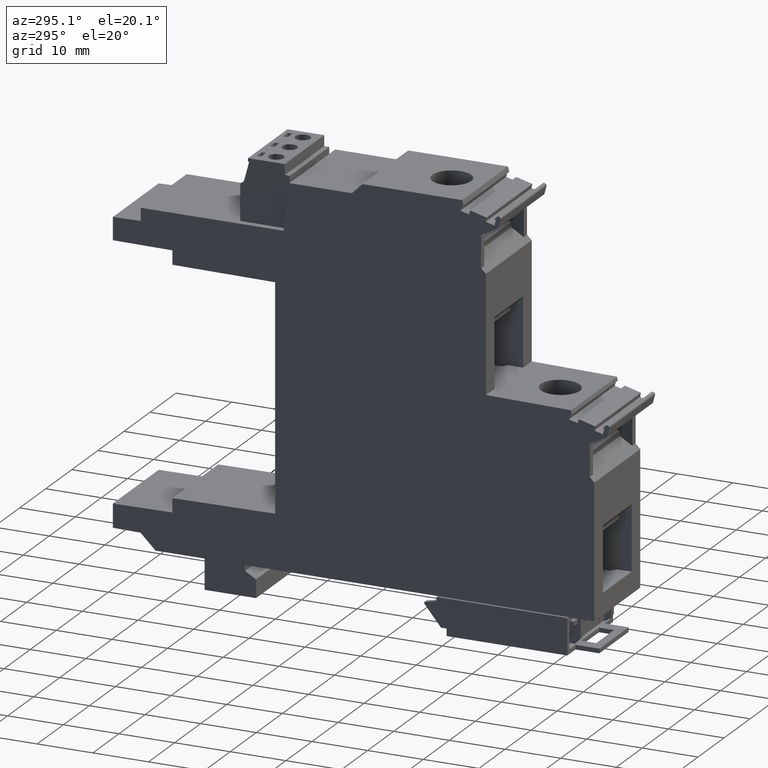
[diagram: clean part render]
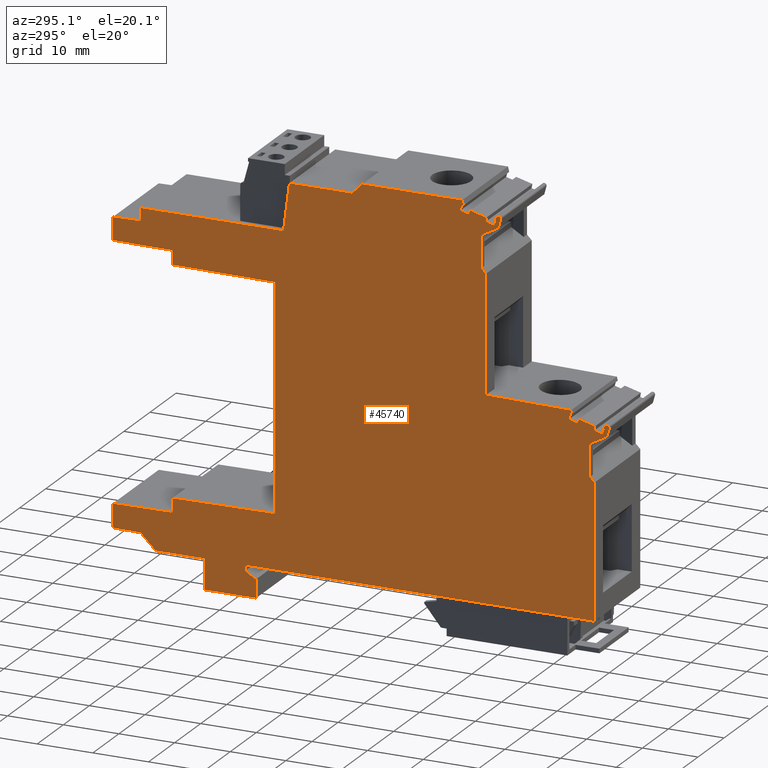
[diagram: same view with one face highlighted and labeled with its STEP entity id]
A machine part, auxiliary view. The second image highlights one B-rep face of the part: STEP entity #45740.
In plain terms, the highlighted planar face has unit normal (-1, 0, 0).
Its self-contained STEP definition (entity closure, byte-faithful):
#26860=CARTESIAN_POINT('',(29.7804584000225,54.1326792958271,
1.6642805651331E-11));
#26870=VERTEX_POINT('',#26860);
#26900=CARTESIAN_POINT('',(29.7804584000229,22.923372749623,
2.92988411198072E-11));
#26910=DIRECTION('',(1.25004173678888E-14,-1.,1.13296184049846E-12));
#26920=VECTOR('',#26910,1.);
#26930=LINE('',#26900,#26920);
#26940=CARTESIAN_POINT('',(29.7804584000233,-8.66541060671706,
1.6642805651331E-11));
#26950=VERTEX_POINT('',#26940);
#26960=EDGE_CURVE('',#26870,#26950,#26930,.T.);
#27560=CARTESIAN_POINT('',(27.0903182029156,72.8882266625509,
1.66430725755755E-11));
#27570=VERTEX_POINT('',#27560);
#27600=CARTESIAN_POINT('',(76.2441454417272,23.7343994237406,
1.66457073106839E-11));
#27610=DIRECTION('',(0.707106781186557,-0.707106781186538,
4.17487700344444E-17));
#27620=VECTOR('',#27610,1.);
#27630=LINE('',#27600,#27620);
#27640=CARTESIAN_POINT('',(29.7804584000223,70.1980864654443,
1.6642805651331E-11));
#27650=VERTEX_POINT('',#27640);
#27660=EDGE_CURVE('',#27570,#27650,#27630,.T.);
#27890=CARTESIAN_POINT('',(27.9630117104619,22.8916490996531,
1.66426921517032E-11));
#27900=DIRECTION('',(0.0174524064372285,-0.999847695156392,
1.08990356972334E-18));
#27910=VECTOR('',#27900,1.);
#27920=LINE('',#27890,#27910);
#27930=CARTESIAN_POINT('',(27.0034554679887,77.8645894136735,
1.66426322273726E-11));
#27940=VERTEX_POINT('',#27930);
#27950=EDGE_CURVE('',#27940,#27570,#27920,.T.);
#28400=CARTESIAN_POINT('',(22.8006257261738,77.8645894136737,
1.66423697604655E-11));
#28410=VERTEX_POINT('',#28400);
#28440=CARTESIAN_POINT('',(-0.00376247512557537,77.864589413675,
1.66410367156577E-11));
#28450=DIRECTION('',(1.,-5.50288981049363E-14,6.24500451351651E-17));
#28460=VECTOR('',#28450,1.);
#28470=LINE('',#28440,#28460);
#28480=EDGE_CURVE('',#28410,#27940,#28470,.T.);
#33450=CARTESIAN_POINT('',(-6.12590482805948,-4.46147353397843,
1.66406830105668E-11));
#33460=VERTEX_POINT('',#33450);
#33490=CARTESIAN_POINT('',(-7.79388468213482,91.0970283068423,
-3.04049163826878E-11));
#33500=DIRECTION('',(-0.0174524064372899,0.999847695156391,
-1.02934146988015E-18));
#33510=VECTOR('',#33500,1.);
#33520=LINE('',#33490,#33510);
#33530=CARTESIAN_POINT('',(-6.39301882384896,10.8414770358341,
1.66405466160457E-11));
#33540=VERTEX_POINT('',#33530);
#33550=EDGE_CURVE('',#33460,#33540,#33520,.T.);
#40580=CARTESIAN_POINT('',(-28.6243628162101,25.7204398027176,
-3.04061410291903E-11));
#40590=DIRECTION('',(0.70710678118658,-0.707106781186515,
4.17050987279859E-17));
#40600=VECTOR('',#40590,1.);
#40610=LINE('',#40580,#40600);
#40620=CARTESIAN_POINT('',(4.91148759322796,-7.81541060671746,
1.66417170093229E-11));
#40630=VERTEX_POINT('',#40620);
#40640=CARTESIAN_POINT('',(5.76148759322794,-8.66541060671736,
1.66418504671819E-11));
#40650=VERTEX_POINT('',#40640);
#40660=EDGE_CURVE('',#40630,#40650,#40610,.T.);
#41390=CARTESIAN_POINT('',(26.2962375289642,75.5145893805072,
1.66425880615804E-11));
#41400=DIRECTION('',(6.24500451351651E-17,-9.63831640668592E-31,-1.));
#41410=DIRECTION('',(-1.,-1.25004173678889E-14,-6.24500451351651E-17));
#41420=AXIS2_PLACEMENT_3D('',#41390,#41400,#41410);
#41430=PLANE('',#41420);
#41440=CARTESIAN_POINT('',(-39.5037624751259,91.0970283068417,
-3.04067866670042E-11));
#41450=DIRECTION('',(1.24969479209369E-14,-1.,6.05501983199407E-20));
#41460=VECTOR('',#41450,1.);
#41470=LINE('',#41440,#41460);
#41480=CARTESIAN_POINT('',(-39.5037624751252,33.0330606274227,
1.66384788486102E-11));
#41490=VERTEX_POINT('',#41480);
#41500=CARTESIAN_POINT('',(-39.503762475125,15.1035574072957,
1.66392508363457E-11));
#41510=VERTEX_POINT('',#41500);
#41520=EDGE_CURVE('',#41490,#41510,#41470,.T.);
#41530=ORIENTED_EDGE('',*,*,#41520,.F.);
#41540=CARTESIAN_POINT('',(-28.6243628162099,12.3910168092608,
-3.04061401136708E-11));
#41550=DIRECTION('',(0.970295692592301,-0.241922030697551,
5.72279586783136E-17));
#41560=VECTOR('',#41550,1.);
#41570=LINE('',#41540,#41560);
#41580=CARTESIAN_POINT('',(-38.603017024317,14.8789762097653,
1.66392894854534E-11));
#41590=VERTEX_POINT('',#41580);
#41600=EDGE_CURVE('',#41510,#41590,#41570,.T.);
#41610=ORIENTED_EDGE('',*,*,#41600,.F.);
#41620=CARTESIAN_POINT('',(-60.4580751243689,91.0970283068413,
-3.04080225759714E-11));
#41630=DIRECTION('',(-0.275635996398349,0.961262085744304,
-1.62569879806416E-17));
#41640=VECTOR('',#41630,1.);
#41650=LINE('',#41620,#41640);
#41660=CARTESIAN_POINT('',(-38.6808381639461,15.1503722246993,
1.66387228968582E-11));
#41670=VERTEX_POINT('',#41660);
#41680=EDGE_CURVE('',#41590,#41670,#41650,.T.);
#41690=ORIENTED_EDGE('',*,*,#41680,.F.);
#41700=CARTESIAN_POINT('',(-28.62436281621,17.8449966728289,
-3.04061405523306E-11));
#41710=DIRECTION('',(0.965925826289065,0.258819045102533,
5.69702243297629E-17));
#41720=VECTOR('',#41710,1.);
#41730=LINE('',#41700,#41720);
#41740=CARTESIAN_POINT('',(-37.6387835299282,15.4295899223536,
1.66387827830843E-11));
#41750=VERTEX_POINT('',#41740);
#41760=EDGE_CURVE('',#41670,#41750,#41730,.T.);
#41770=ORIENTED_EDGE('',*,*,#41760,.F.);
#41780=CARTESIAN_POINT('',(-57.9138105754083,91.0970283068414,
-3.04078725123819E-11));
#41790=DIRECTION('',(0.258819021722919,-0.965925832553614,
1.5265124222854E-17));
#41800=VECTOR('',#41790,1.);
#41810=LINE('',#41780,#41800);
#41820=CARTESIAN_POINT('',(-37.2254797137874,13.8871189322158,
1.66387468122473E-11));
#41830=VERTEX_POINT('',#41820);
#41840=EDGE_CURVE('',#41750,#41830,#41810,.T.);
#41850=ORIENTED_EDGE('',*,*,#41840,.F.);
#41860=CARTESIAN_POINT('',(-28.62436281621,17.0176701124642,
-3.04061403938156E-11));
#41870=DIRECTION('',(-0.939692598029631,-0.342020205848021,
-5.54229907242845E-17));
#41880=VECTOR('',#41870,1.);
#41890=LINE('',#41860,#41880);
#41900=CARTESIAN_POINT('',(-37.9329412321889,13.6296239443224,
1.66384133739823E-11));
#41910=VERTEX_POINT('',#41900);
#41920=EDGE_CURVE('',#41830,#41910,#41890,.T.);
#41930=ORIENTED_EDGE('',*,*,#41920,.F.);
#41940=CARTESIAN_POINT('',(-58.690269670862,91.0970283068414,
-3.04079183088141E-11));
#41950=DIRECTION('',(0.258819045102531,-0.965925826289066,
1.52651256017816E-17));
#41960=VECTOR('',#41950,1.);
#41970=LINE('',#41940,#41960);
#41980=CARTESIAN_POINT('',(-37.1564841019529,10.7318464843829,
1.66384966407086E-11));
#41990=VERTEX_POINT('',#41980);
#42000=EDGE_CURVE('',#41910,#41990,#41970,.T.);
#42010=ORIENTED_EDGE('',*,*,#42000,.F.);
#42020=CARTESIAN_POINT('',(-28.6243628162099,12.236289678457,
-3.04061402127223E-11));
#42030=DIRECTION('',(0.984807752840075,0.173648178643145,
5.80838787762145E-17));
#42040=VECTOR('',#42030,1.);
#42050=LINE('',#42020,#42040);
#42060=CARTESIAN_POINT('',(-36.4150569430204,10.8625800974905,
1.66385413739017E-11));
#42070=VERTEX_POINT('',#42060);
#42080=EDGE_CURVE('',#41990,#42070,#42050,.T.);
#42090=ORIENTED_EDGE('',*,*,#42080,.F.);
#42100=CARTESIAN_POINT('',(-57.9138125458732,91.0970283068414,
-3.04078725124981E-11));
#42110=DIRECTION('',(0.258819045102527,-0.965925826289067,
1.52651256017813E-17));
#42120=VECTOR('',#42110,1.);
#42130=LINE('',#42100,#42120);
#42140=CARTESIAN_POINT('',(-36.0017530800778,9.3201090820241,
1.66388768621965E-11));
#42150=VERTEX_POINT('',#42140);
#42160=EDGE_CURVE('',#42070,#42150,#42130,.T.);
#42170=ORIENTED_EDGE('',*,*,#42160,.F.);
#42180=CARTESIAN_POINT('',(-28.6243628162099,11.2968748552859,
-3.04061401558405E-11));
#42190=DIRECTION('',(-0.96592582596799,-0.258819046300801,
-5.69702243108259E-17));
#42200=VECTOR('',#42190,1.);
#42210=LINE('',#42180,#42200);
#42220=CARTESIAN_POINT('',(-37.0352937140416,9.04317270243452,
1.66385244752452E-11));
#42230=VERTEX_POINT('',#42220);
#42240=EDGE_CURVE('',#42150,#42230,#42210,.T.);
#42250=ORIENTED_EDGE('',*,*,#42240,.F.);
#42260=CARTESIAN_POINT('',(-59.0215580591035,91.0970283068414,
-3.04079378485765E-11));
#42270=DIRECTION('',(-0.258819045102533,0.965925826289065,
-1.52651256017817E-17));
#42280=VECTOR('',#42270,1.);
#42290=LINE('',#42260,#42280);
#42300=CARTESIAN_POINT('',(-37.1057721130053,9.30620166820297,
1.66385169171904E-11));
#42310=VERTEX_POINT('',#42300);
#42320=EDGE_CURVE('',#42230,#42310,#42290,.T.);
#42330=ORIENTED_EDGE('',*,*,#42320,.F.);
#42340=CARTESIAN_POINT('',(44.6850536738362,91.0970283068433,
-3.04018211157809E-11));
#42350=DIRECTION('',(-0.707106777504517,-0.707106784868579,
-4.17050985108168E-17));
#42360=VECTOR('',#42350,1.);
#42370=LINE('',#42340,#42360);
#42380=CARTESIAN_POINT('',(-37.5548211049481,8.85715267158364,
1.6638601535548E-11));
#42390=VERTEX_POINT('',#42380);
#42400=EDGE_CURVE('',#42310,#42390,#42370,.T.);
#42410=ORIENTED_EDGE('',*,*,#42400,.F.);
#42420=CARTESIAN_POINT('',(-37.271978391,8.57430996058117,
-3.04066500370977E-11));
#42430=DIRECTION('',(-5.8979916241223E-17,1.00724932385237E-30,1.));
#42440=DIRECTION('',(1.,1.25038868148408E-14,5.8979916241223E-17));
#42450=AXIS2_PLACEMENT_3D('',#42420,#42430,#42440);
#42460=CIRCLE('',#42450,0.400000000000926);
#42470=CARTESIAN_POINT('',(-37.1684507724794,8.18793963019308,
1.66386243236379E-11));
#42480=VERTEX_POINT('',#42470);
#42490=EDGE_CURVE('',#42390,#42480,#42460,.T.);
#42500=ORIENTED_EDGE('',*,*,#42490,.F.);
#42510=CARTESIAN_POINT('',(-28.6243628162099,10.4773211094964,
-3.04061402146366E-11));
#42520=DIRECTION('',(0.96592582596799,0.258819046300802,
5.69702243108259E-17));
#42530=VECTOR('',#42520,1.);
#42540=LINE('',#42510,#42530);
#42550=CARTESIAN_POINT('',(-35.7171657915684,8.57681027074526,
1.66389637060149E-11));
#42560=VERTEX_POINT('',#42550);
#42570=EDGE_CURVE('',#42480,#42560,#42540,.T.);
#42580=ORIENTED_EDGE('',*,*,#42570,.F.);
#42590=CARTESIAN_POINT('',(9.77483336473188,91.0970283068426,
-3.04038801599045E-11));
#42600=DIRECTION('',(0.482781193541081,0.875741011465747,
2.84743943578897E-17));
#42610=VECTOR('',#42600,1.);
#42620=LINE('',#42590,#42610);
#42630=CARTESIAN_POINT('',(-34.0001027345176,11.6914770358337,
1.66391611373736E-11));
#42640=VERTEX_POINT('',#42630);
#42650=EDGE_CURVE('',#42560,#42640,#42620,.T.);
#42660=ORIENTED_EDGE('',*,*,#42650,.F.);
#42670=CARTESIAN_POINT('',(-28.6243628162099,11.6914770358338,
-3.04061401797338E-11));
#42680=DIRECTION('',(1.,1.87662385631171E-14,5.89811265967869E-17));
#42690=VECTOR('',#42680,1.);
#42700=LINE('',#42670,#42690);
#42710=CARTESIAN_POINT('',(-28.2331701582295,11.6914770358338,
1.66365129916048E-11));
#42720=VERTEX_POINT('',#42710);
#42730=EDGE_CURVE('',#42640,#42720,#42700,.T.);
#42740=ORIENTED_EDGE('',*,*,#42730,.F.);
#42750=CARTESIAN_POINT('',(-28.6243628162099,12.0826696938142,
-3.04061402034206E-11));
#42760=DIRECTION('',(0.70710678118658,-0.707106781186515,
4.17050987279859E-17));
#42770=VECTOR('',#42760,1.);
#42780=LINE('',#42750,#42770);
#42790=CARTESIAN_POINT('',(-27.3831701582295,10.8414770358339,
1.66392357801475E-11));
#42800=VERTEX_POINT('',#42790);
#42810=EDGE_CURVE('',#42720,#42800,#42780,.T.);
#42820=ORIENTED_EDGE('',*,*,#42810,.F.);
#42830=CARTESIAN_POINT('',(-28.6243628162099,10.8414770358339,
-3.04061401282661E-11));
#42840=DIRECTION('',(1.,1.25038868148408E-14,5.89811265967868E-17));
#42850=VECTOR('',#42840,1.);
#42860=LINE('',#42830,#42850);
#42870=EDGE_CURVE('',#42800,#33540,#42860,.T.);
#42880=ORIENTED_EDGE('',*,*,#42870,.F.);
#42890=ORIENTED_EDGE('',*,*,#33550,.T.);
#42900=CARTESIAN_POINT('',(-28.6243628162097,1.1480253905353,
-3.04061394329055E-11));
#42910=DIRECTION('',(0.970295692592301,-0.241922030697551,
5.72279586783136E-17));
#42920=VECTOR('',#42910,1.);
#42930=LINE('',#42900,#42920);
#42940=CARTESIAN_POINT('',(-5.45835927285958,-4.62791143278599,
1.66407116535535E-11));
#42950=VERTEX_POINT('',#42940);
#42960=EDGE_CURVE('',#33460,#42950,#42930,.T.);
#42970=ORIENTED_EDGE('',*,*,#42960,.F.);
#42980=CARTESIAN_POINT('',(-32.9068975400005,91.0970283068418,
-3.04063975764784E-11));
#42990=DIRECTION('',(-0.275635996398349,0.961262085744304,
-1.62569879806416E-17));
#43000=VECTOR('',#42990,1.);
#43010=LINE('',#42980,#43000);
#43020=CARTESIAN_POINT('',(-5.53618041248871,-4.3565154178519,
1.66406479032482E-11));
#43030=VERTEX_POINT('',#43020);
#43040=EDGE_CURVE('',#42950,#43030,#43010,.T.);
#43050=ORIENTED_EDGE('',*,*,#43040,.F.);
#43060=CARTESIAN_POINT('',(-28.6243628162095,-10.5429752476316,
-3.04061388334333E-11));
#43070=DIRECTION('',(0.965925826289065,0.258819045102533,
5.69702243297629E-17));
#43080=VECTOR('',#43070,1.);
#43090=LINE('',#43060,#43080);
#43100=CARTESIAN_POINT('',(-4.49412577847079,-4.07729772019767,
1.66407141346656E-11));
#43110=VERTEX_POINT('',#43100);
#43120=EDGE_CURVE('',#43030,#43110,#43090,.T.);
#43130=ORIENTED_EDGE('',*,*,#43120,.F.);
#43140=CARTESIAN_POINT('',(-29.9960071085669,91.0970283068419,
-3.04062258888813E-11));
#43150=DIRECTION('',(0.258819021722919,-0.965925832553614,
1.5265124222854E-17));
#43160=VECTOR('',#43150,1.);
#43170=LINE('',#43140,#43160);
#43180=CARTESIAN_POINT('',(-4.08082196232995,-5.61976871033539,
1.66407047909659E-11));
#43190=VERTEX_POINT('',#43180);
#43200=EDGE_CURVE('',#43110,#43190,#43170,.T.);
#43210=ORIENTED_EDGE('',*,*,#43200,.F.);
#43220=CARTESIAN_POINT('',(-28.6243628162094,-14.5528888739769,
-3.04061385906322E-11));
#43230=DIRECTION('',(-0.939692598029631,-0.342020205848021,
-5.54229907242845E-17));
#43240=VECTOR('',#43230,1.);
#43250=LINE('',#43220,#43240);
#43260=CARTESIAN_POINT('',(-4.78828348073144,-5.87726369822887,
1.66407173663345E-11));
#43270=VERTEX_POINT('',#43260);
#43280=EDGE_CURVE('',#43190,#43270,#43250,.T.);
#43290=ORIENTED_EDGE('',*,*,#43280,.F.);
#43300=CARTESIAN_POINT('',(-30.7724667100711,91.0970283068419,
-3.04062716853434E-11));
#43310=DIRECTION('',(0.258819045102531,-0.965925826289066,
1.52651256017816E-17));
#43320=VECTOR('',#43310,1.);
#43330=LINE('',#43300,#43320);
#43340=CARTESIAN_POINT('',(-4.01182635049552,-8.77504115816833,
1.66408006330608E-11));
#43350=VERTEX_POINT('',#43340);
#43360=EDGE_CURVE('',#43270,#43350,#43330,.T.);
#43370=ORIENTED_EDGE('',*,*,#43360,.F.);
#43380=CARTESIAN_POINT('',(-28.6243628162094,-13.114895425901,
-3.0406138677703E-11));
#43390=DIRECTION('',(0.984807752840075,0.173648178643145,
5.80838787762145E-17));
#43400=VECTOR('',#43390,1.);
#43410=LINE('',#43380,#43400);
#43420=CARTESIAN_POINT('',(-3.270399191563,-8.6443075450607,
1.6640845366254E-11));
#43430=VERTEX_POINT('',#43420);
#43440=EDGE_CURVE('',#43350,#43430,#43410,.T.);
#43450=ORIENTED_EDGE('',*,*,#43440,.F.);
#43460=CARTESIAN_POINT('',(-29.9960095850823,91.0970283068419,
-3.04062258890274E-11));
#43470=DIRECTION('',(0.258819045102527,-0.965925826289067,
1.52651256017813E-17));
#43480=VECTOR('',#43470,1.);
#43490=LINE('',#43460,#43480);
#43500=CARTESIAN_POINT('',(-2.85709532862035,-10.1867785605271,
1.66408896886747E-11));
#43510=VERTEX_POINT('',#43500);
#43520=EDGE_CURVE('',#43430,#43510,#43490,.T.);
#43530=ORIENTED_EDGE('',*,*,#43520,.F.);
#43540=CARTESIAN_POINT('',(-28.6243628162093,-17.091097109244,
-3.0406138328523E-11));
#43550=DIRECTION('',(-0.96592582596799,-0.258819046300801,
-5.69702243108259E-17));
#43560=VECTOR('',#43550,1.);
#43570=LINE('',#43540,#43560);
#43580=CARTESIAN_POINT('',(-3.8906359625842,-10.4637149401167,
1.66407222679519E-11));
#43590=VERTEX_POINT('',#43580);
#43600=EDGE_CURVE('',#43510,#43590,#43570,.T.);
#43610=ORIENTED_EDGE('',*,*,#43600,.F.);
#43620=CARTESIAN_POINT('',(-31.1037550983127,91.0970283068419,
-3.04062912251057E-11));
#43630=DIRECTION('',(-0.258819045102533,0.965925826289065,
-1.52651256017817E-17));
#43640=VECTOR('',#43630,1.);
#43650=LINE('',#43620,#43640);
#43660=CARTESIAN_POINT('',(-3.96111436154785,-10.2006859743483,
1.66405347208801E-11));
#43670=VERTEX_POINT('',#43660);
#43680=EDGE_CURVE('',#43590,#43670,#43650,.T.);
#43690=ORIENTED_EDGE('',*,*,#43680,.F.);
#43700=CARTESIAN_POINT('',(97.3365988646942,91.0970283068443,
-3.03987156683285E-11));
#43710=DIRECTION('',(-0.707106777504517,-0.707106784868579,
-4.17050985108168E-17));
#43720=VECTOR('',#43710,1.);
#43730=LINE('',#43700,#43720);
#43740=CARTESIAN_POINT('',(-4.41016335349062,-10.6497349709676,
1.664067142696E-11));
#43750=VERTEX_POINT('',#43740);
#43760=EDGE_CURVE('',#43670,#43750,#43730,.T.);
#43770=ORIENTED_EDGE('',*,*,#43760,.F.);
#43780=CARTESIAN_POINT('',(-4.12732063954254,-10.9325776819701,
-3.04046939466969E-11));
#43790=DIRECTION('',(-5.8979916241223E-17,1.00724932385237E-30,1.));
#43800=DIRECTION('',(1.,1.25038868148408E-14,5.8979916241223E-17));
#43810=AXIS2_PLACEMENT_3D('',#43780,#43790,#43800);
#43820=CIRCLE('',#43810,0.400000000000926);
#43830=CARTESIAN_POINT('',(-4.02379302102199,-11.3189480123582,
1.66408302379295E-11));
#43840=VERTEX_POINT('',#43830);
#43850=EDGE_CURVE('',#43750,#43840,#43820,.T.);
#43860=ORIENTED_EDGE('',*,*,#43850,.F.);
#43870=CARTESIAN_POINT('',(-28.6243628162093,-17.9106508550335,
-3.04061383873191E-11));
#43880=DIRECTION('',(0.96592582596799,0.258819046300802,
5.69702243108259E-17));
#43890=VECTOR('',#43880,1.);
#43900=LINE('',#43870,#43890);
#43910=CARTESIAN_POINT('',(-2.57250804011096,-10.930077371806,
1.66408719401482E-11));
#43920=VERTEX_POINT('',#43910);
#43930=EDGE_CURVE('',#43840,#43920,#43900,.T.);
#43940=ORIENTED_EDGE('',*,*,#43930,.F.);
#43950=CARTESIAN_POINT('',(53.6733080267171,91.0970283068435,
-3.04012909784131E-11));
#43960=DIRECTION('',(0.482781193541081,0.875741011465747,
2.84743943578897E-17));
#43970=VECTOR('',#43960,1.);
#43980=LINE('',#43950,#43970);
#43990=CARTESIAN_POINT('',(-0.855444983060173,-7.81541060671757,
1.6640892437782E-11));
#44000=VERTEX_POINT('',#43990);
#44010=EDGE_CURVE('',#43920,#44000,#43980,.T.);
#44020=ORIENTED_EDGE('',*,*,#44010,.F.);
#44030=CARTESIAN_POINT('',(-28.6243628162095,-7.8154106067181,
-3.04061389985879E-11));
#44040=DIRECTION('',(1.,1.87662385631171E-14,5.89811265967869E-17));
#44050=VECTOR('',#44040,1.);
#44060=LINE('',#44030,#44050);
#44070=EDGE_CURVE('',#44000,#40630,#44060,.T.);
#44080=ORIENTED_EDGE('',*,*,#44070,.F.);
#44090=ORIENTED_EDGE('',*,*,#40660,.F.);
#44100=CARTESIAN_POINT('',(-28.6243628162095,-8.6654106067178,
-3.04061389471202E-11));
#44110=DIRECTION('',(1.,1.25038868148408E-14,5.89811265967868E-17));
#44120=VECTOR('',#44110,1.);
#44130=LINE('',#44100,#44120);
#44140=EDGE_CURVE('',#40650,#26950,#44130,.T.);
#44150=ORIENTED_EDGE('',*,*,#44140,.F.);
#44160=ORIENTED_EDGE('',*,*,#26960,.T.);
#44170=CARTESIAN_POINT('',(-2.74887512464851,54.1326792957971,
1.66408854707372E-11));
#44180=DIRECTION('',(1.,9.21134696296733E-13,6.24500451351651E-17));
#44190=VECTOR('',#44180,1.);
#44200=LINE('',#44170,#44190);
#44210=CARTESIAN_POINT('',(30.7929560622164,54.132679295828,
1.664134640854E-11));
#44220=VERTEX_POINT('',#44210);
#44230=EDGE_CURVE('',#26870,#44220,#44200,.T.);
#44240=ORIENTED_EDGE('',*,*,#44230,.F.);
#44250=CARTESIAN_POINT('',(62.0054966537971,-0.149999993819193,
1.66449293841775E-11));
#44260=DIRECTION('',(-0.498471124258486,0.866906303057304,
-3.11295442085198E-17));
#44270=VECTOR('',#44260,1.);
#44280=LINE('',#44250,#44270);
#44290=CARTESIAN_POINT('',(31.942956062217,52.1326792958291,
1.66414744757856E-11));
#44300=VERTEX_POINT('',#44290);
#44310=EDGE_CURVE('',#44300,#44220,#44280,.T.);
#44320=ORIENTED_EDGE('',*,*,#44310,.T.);
#44330=CARTESIAN_POINT('',(-0.00376246123732038,52.1326792957997,
1.66410569031469E-11));
#44340=DIRECTION('',(-1.,-9.21138165743685E-13,-6.24500451351651E-17));
#44350=VECTOR('',#44340,1.);
#44360=LINE('',#44330,#44350);
#44370=CARTESIAN_POINT('',(35.2019096223292,52.1326792958321,
1.66431442212046E-11));
#44380=VERTEX_POINT('',#44370);
#44390=EDGE_CURVE('',#44380,#44300,#44360,.T.);
#44400=ORIENTED_EDGE('',*,*,#44390,.T.);
#44410=CARTESIAN_POINT('',(35.2019096223299,-0.149999993819531,
1.66432554989576E-11));
#44420=DIRECTION('',(1.25004173678889E-14,-1.,1.74448326950165E-30));
#44430=VECTOR('',#44420,1.);
#44440=LINE('',#44410,#44430);
#44450=CARTESIAN_POINT('',(35.2019096223291,61.3702614907417,
1.66431442212046E-11));
#44460=VERTEX_POINT('',#44450);
#44470=EDGE_CURVE('',#44460,#44380,#44440,.T.);
#44480=ORIENTED_EDGE('',*,*,#44470,.T.);
#44490=CARTESIAN_POINT('',(-2.87520759178522,61.3702614907756,
1.66408775812689E-11));
#44500=DIRECTION('',(1.,-8.96133861560955E-13,6.24500451351651E-17));
#44510=VECTOR('',#44500,1.);
#44520=LINE('',#44490,#44510);
#44530=CARTESIAN_POINT('',(29.7804584000224,61.3702614907463,
1.6642805651331E-11));
#44540=VERTEX_POINT('',#44530);
#44550=EDGE_CURVE('',#44540,#44460,#44520,.T.);
#44560=ORIENTED_EDGE('',*,*,#44550,.T.);
#44570=EDGE_CURVE('',#27650,#44540,#26930,.T.);
#44580=ORIENTED_EDGE('',*,*,#44570,.T.);
#44590=ORIENTED_EDGE('',*,*,#27660,.T.);
#44600=ORIENTED_EDGE('',*,*,#27950,.T.);
#44610=ORIENTED_EDGE('',*,*,#28480,.T.);
#44620=CARTESIAN_POINT('',(22.5462375298249,48.7145893932866,
1.6642368505101E-11));
#44630=DIRECTION('',(0.00872653549836144,0.999961923064172,
5.44972535745328E-19));
#44640=VECTOR('',#44630,1.);
#44650=LINE('',#44620,#44640);
#44660=CARTESIAN_POINT('',(22.7072482405167,67.1645893797424,
1.66423639290373E-11));
#44670=VERTEX_POINT('',#44660);
#44680=EDGE_CURVE('',#44670,#28410,#44650,.T.);
#44690=ORIENTED_EDGE('',*,*,#44680,.T.);
#44700=CARTESIAN_POINT('',(-2.97634796130255,67.1645893797421,
1.66407599872953E-11));
#44710=DIRECTION('',(1.,1.25004173678889E-14,6.24505735487405E-17));
#44720=VECTOR('',#44710,1.);
#44730=LINE('',#44700,#44720);
#44740=CARTESIAN_POINT('',(20.2072482415016,67.1645893797424,
1.66422078039246E-11));
#44750=VERTEX_POINT('',#44740);
#44760=EDGE_CURVE('',#44750,#44670,#44730,.T.);
#44770=ORIENTED_EDGE('',*,*,#44760,.T.);
#44780=CARTESIAN_POINT('',(19.6211117497649,0.,1.66421711996742E-11));
#44790=DIRECTION('',(-0.00872653549836144,-0.999961923064171,
-8.67361737988404E-19));
#44800=VECTOR('',#44790,1.);
#44810=LINE('',#44780,#44800);
#44820=CARTESIAN_POINT('',(20.0462375308631,48.7145893912866,
1.66421977487984E-11));
#44830=VERTEX_POINT('',#44820);
#44840=EDGE_CURVE('',#44750,#44830,#44810,.T.);
#44850=ORIENTED_EDGE('',*,*,#44840,.F.);
#44860=CARTESIAN_POINT('',(0.,48.7145893912863,1.66409458603598E-11));
#44870=DIRECTION('',(-1.,-1.27849120179491E-14,-6.24500451351651E-17));
#44880=VECTOR('',#44870,1.);
#44890=LINE('',#44860,#44880);
#44900=CARTESIAN_POINT('',(-20.0611763131205,48.7145893912861,
1.6639677333338E-11));
#44910=VERTEX_POINT('',#44900);
#44920=EDGE_CURVE('',#44830,#44910,#44890,.T.);
#44930=ORIENTED_EDGE('',*,*,#44920,.F.);
#44940=CARTESIAN_POINT('',(-19.636050532021,0.,1.66397195881178E-11));
#44950=DIRECTION('',(-0.00872653549838643,0.999961923064171,
-8.67361737988404E-19));
#44960=VECTOR('',#44950,1.);
#44970=LINE('',#44940,#44960);
#44980=CARTESIAN_POINT('',(-20.2221870237594,67.164589379742,
1.66396829838674E-11));
#44990=VERTEX_POINT('',#44980);
#45000=EDGE_CURVE('',#44910,#44990,#44970,.T.);
#45010=ORIENTED_EDGE('',*,*,#45000,.F.);
#45020=CARTESIAN_POINT('',(-2.97634796130257,67.1645893797434,
1.66407599872953E-11));
#45030=DIRECTION('',(-1.,-8.0033202287666E-14,-6.24505735487405E-17));
#45040=VECTOR('',#45030,1.);
#45050=LINE('',#45020,#45040);
#45060=CARTESIAN_POINT('',(-22.7221870227745,67.1645893797419,
1.66395052047918E-11));
#45070=VERTEX_POINT('',#45060);
#45080=EDGE_CURVE('',#44990,#45070,#45050,.T.);
#45090=ORIENTED_EDGE('',*,*,#45080,.F.);
#45100=CARTESIAN_POINT('',(-22.3281621700983,22.0138133942513,
1.66395514656245E-11));
#45110=DIRECTION('',(0.00872653549838644,-0.999961923064171,
5.75248787734743E-19));
#45120=VECTOR('',#45110,1.);
#45130=LINE('',#45100,#45120);
#45140=CARTESIAN_POINT('',(-22.8155645082905,77.8645893974734,
1.66395210273265E-11));
#45150=VERTEX_POINT('',#45140);
#45160=EDGE_CURVE('',#45150,#45070,#45130,.T.);
#45170=ORIENTED_EDGE('',*,*,#45160,.T.);
#45180=CARTESIAN_POINT('',(0.,77.8645893974752,1.66409458603598E-11));
#45190=DIRECTION('',(1.,8.03176969377262E-14,6.24500451351651E-17));
#45200=VECTOR('',#45190,1.);
#45210=LINE('',#45180,#45200);
#45220=CARTESIAN_POINT('',(-26.842544509117,77.8645893974731,
1.66393197585291E-11));
#45230=VERTEX_POINT('',#45220);
#45240=EDGE_CURVE('',#45230,#45150,#45210,.T.);
#45250=ORIENTED_EDGE('',*,*,#45240,.T.);
#45260=CARTESIAN_POINT('',(-27.3513596518452,48.714589393286,
1.66394254886048E-11));
#45270=DIRECTION('',(0.0174524064372032,0.999847695156393,
1.08990356971962E-18));
#45280=VECTOR('',#45270,1.);
#45290=LINE('',#45260,#45280);
#45300=CARTESIAN_POINT('',(-26.930107842329,72.8480893974731,
1.66393110549632E-11));
#45310=VERTEX_POINT('',#45300);
#45320=EDGE_CURVE('',#45310,#45230,#45290,.T.);
#45330=ORIENTED_EDGE('',*,*,#45320,.T.);
#45340=CARTESIAN_POINT('',(-0.00376247512551275,72.8480893974753,
1.66410370194077E-11));
#45350=DIRECTION('',(1.,8.03176969377262E-14,6.24500451351651E-17));
#45360=VECTOR('',#45350,1.);
#45370=LINE('',#45340,#45360);
#45380=CARTESIAN_POINT('',(-29.2142086338028,72.8480893974729,
1.6639121431712E-11));
#45390=VERTEX_POINT('',#45380);
#45400=EDGE_CURVE('',#45390,#45310,#45370,.T.);
#45410=ORIENTED_EDGE('',*,*,#45400,.T.);
#45420=CARTESIAN_POINT('',(-29.214208633802,21.8936170061286,
3.03168359159741E-11));
#45430=DIRECTION('',(-1.25004173678888E-14,1.,-1.13296184049846E-12));
#45440=VECTOR('',#45430,1.);
#45450=LINE('',#45420,#45440);
#45460=CARTESIAN_POINT('',(-29.2142086338024,47.20572875058,
1.66393112327733E-11));
#45470=VERTEX_POINT('',#45460);
#45480=EDGE_CURVE('',#45470,#45390,#45450,.T.);
#45490=ORIENTED_EDGE('',*,*,#45480,.T.);
#45500=CARTESIAN_POINT('',(-2.68651504902274,50.5600729559067,
1.66407780873737E-11));
#45510=DIRECTION('',(0.992100198828064,0.125447979199811,
5.85075915237562E-17));
#45520=VECTOR('',#45510,1.);
#45530=LINE('',#45500,#45520);
#45540=CARTESIAN_POINT('',(-37.6323880751253,46.1412761875195,
1.66388402089467E-11));
#45550=VERTEX_POINT('',#45540);
#45560=EDGE_CURVE('',#45550,#45470,#45530,.T.);
#45570=ORIENTED_EDGE('',*,*,#45560,.T.);
#45580=CARTESIAN_POINT('',(-37.632388075125,21.7466771374029,
3.04620975691935E-11));
#45590=DIRECTION('',(1.26426646929189E-14,-1.,1.13296184049846E-12));
#45600=VECTOR('',#45590,1.);
#45610=LINE('',#45580,#45600);
#45620=CARTESIAN_POINT('',(-37.6323880751252,34.9044350274227,
1.6638595716026E-11));
#45630=VERTEX_POINT('',#45620);
#45640=EDGE_CURVE('',#45550,#45630,#45610,.T.);
#45650=ORIENTED_EDGE('',*,*,#45640,.F.);
#45660=CARTESIAN_POINT('',(-3.01745084925231,69.5193722532964,
1.66407574204181E-11));
#45670=DIRECTION('',(-0.707106781186539,-0.707106781186556,
-4.16631391227761E-17));
#45680=VECTOR('',#45670,1.);
#45690=LINE('',#45660,#45680);
#45700=EDGE_CURVE('',#45630,#41490,#45690,.T.);
#45710=ORIENTED_EDGE('',*,*,#45700,.F.);
#45720=EDGE_LOOP('',(#45710,#45650,#45570,#45490,#45410,#45330,#45250,
#45170,#45090,#45010,#44930,#44850,#44770,#44690,#44610,#44600,#44590,
#44580,#44560,#44480,#44400,#44320,#44240,#44160,#44150,#44090,#44080,
#44020,#43940,#43860,#43770,#43690,#43610,#43530,#43450,#43370,#43290,
#43210,#43130,#43050,#42970,#42890,#42880,#42820,#42740,#42660,#42580,
#42500,#42410,#42330,#42250,#42170,#42090,#42010,#41930,#41850,#41770,
#41690,#41610,#41530));
#45730=FACE_OUTER_BOUND('',#45720,.T.);
#45740=ADVANCED_FACE('',(#45730),#41430,.T.);